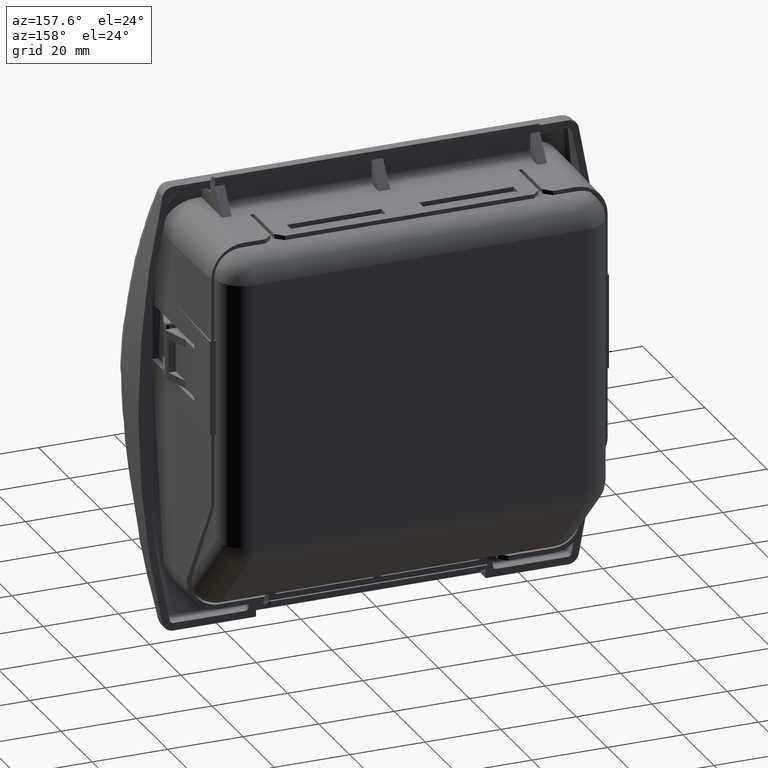
[diagram: clean part render]
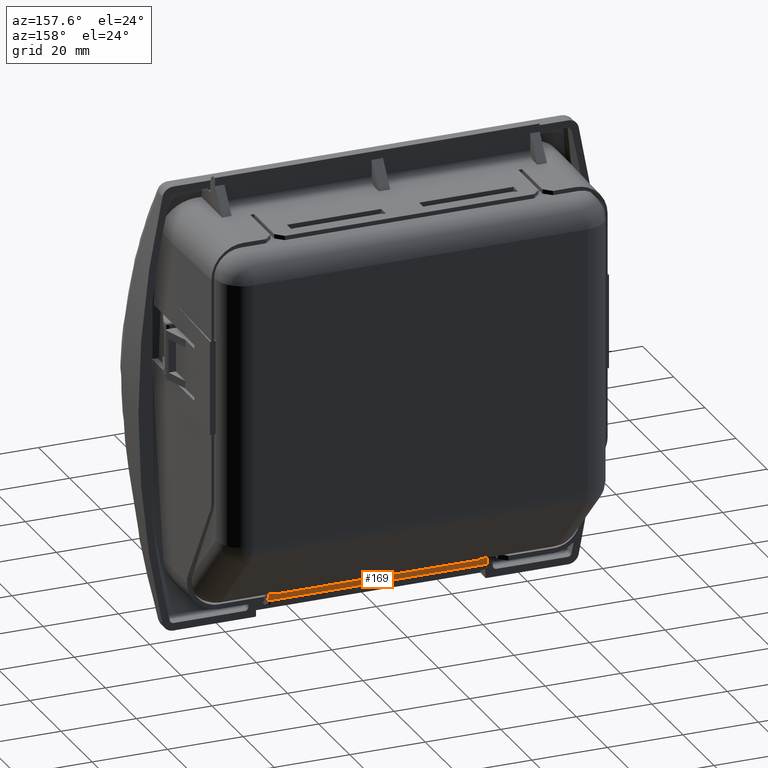
[diagram: same view with one face highlighted and labeled with its STEP entity id]
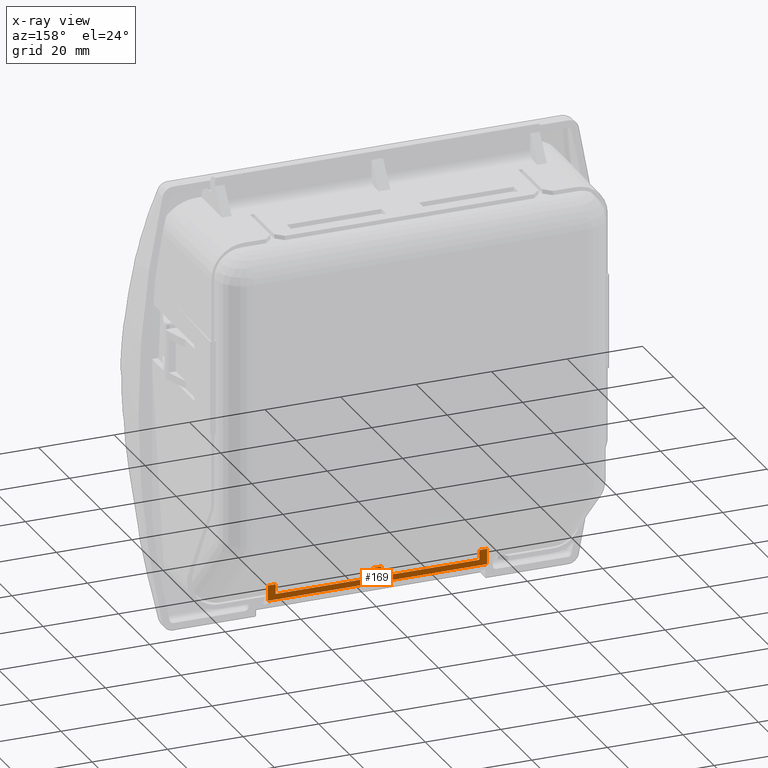
[diagram: x-ray of the same camera — body ghosted, the highlighted face saturated]
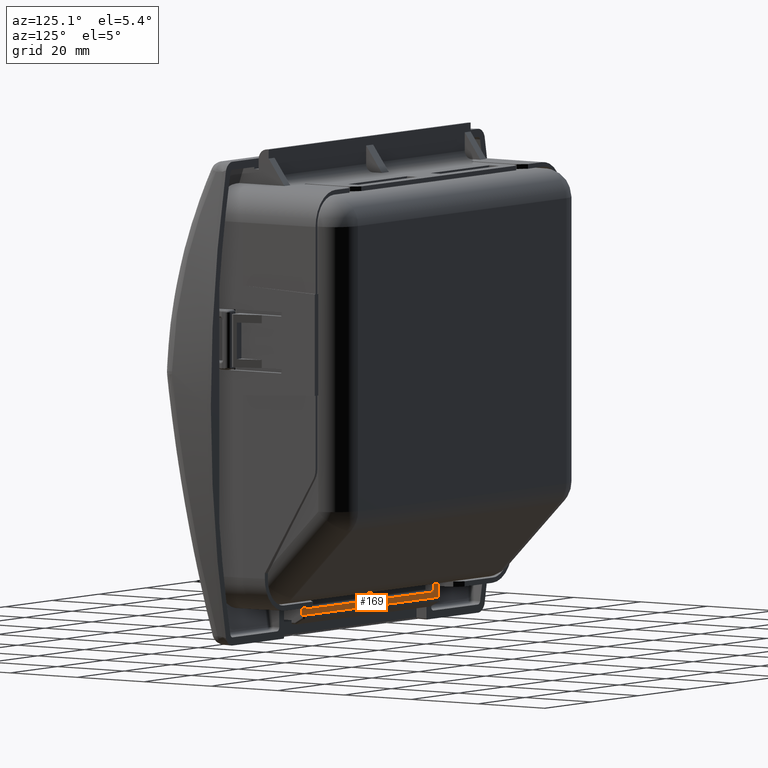
[diagram: same view with one face highlighted and labeled with its STEP entity id]
A machine part, auxiliary view. The second image highlights one B-rep face of the part: STEP entity #169.
The next image is the same camera in x-ray: the body ghosted, the highlighted face saturated — about 0% of this face is hidden behind the body in this view.
A second angle (auxiliary view) of the same face is appended — the face is thin or edge-on in the first view.
In plain terms, the highlighted planar face has unit normal (0, 1, 0).
Its self-contained STEP definition (entity closure, byte-faithful):
#169=ADVANCED_FACE('',(#1054),#1053,.T.);
#1053=PLANE('',#8007);
#1054=FACE_OUTER_BOUND('',#8008,.T.);
#8004=CARTESIAN_POINT('',(-3.48000000000E+001,9.39643359162E+000,-5.56101879000E+001));
#8005=DIRECTION('',(0.00000000000E+000,1.00000000000E+000,0.00000000000E+000));
#8006=DIRECTION('',(0.00000000000E+000,-0.00000000000E+000,1.00000000000E+000));
#8007=AXIS2_PLACEMENT_3D('',#8004,#8005,#8006);
#8008=EDGE_LOOP('',(#15143,#15144,#15145,#15146,#15147,#15148,#15149,#15150,#15151,#15152,#15153,#15154));
#15143=ORIENTED_EDGE('',*,*,#18650,.T.);
#15144=ORIENTED_EDGE('',*,*,#18647,.T.);
#15145=ORIENTED_EDGE('',*,*,#18644,.T.);
#15146=ORIENTED_EDGE('',*,*,#18695,.F.);
#15147=ORIENTED_EDGE('',*,*,#18696,.F.);
#15148=ORIENTED_EDGE('',*,*,#18697,.F.);
#15149=ORIENTED_EDGE('',*,*,#18698,.F.);
#15150=ORIENTED_EDGE('',*,*,#18699,.T.);
#15151=ORIENTED_EDGE('',*,*,#18700,.T.);
#15152=ORIENTED_EDGE('',*,*,#18689,.T.);
#15153=ORIENTED_EDGE('',*,*,#18701,.F.);
#15154=ORIENTED_EDGE('',*,*,#18702,.F.);
#18644=EDGE_CURVE('',#20551,#20580,#20587,.T.);
#18647=EDGE_CURVE('',#20593,#20551,#20607,.T.);
#18650=EDGE_CURVE('',#20627,#20593,#20628,.T.);
#18689=EDGE_CURVE('',#20892,#20885,#20893,.T.);
#18695=EDGE_CURVE('',#20931,#20580,#20932,.T.);
#18696=EDGE_CURVE('',#20938,#20931,#20939,.T.);
#18697=EDGE_CURVE('',#20945,#20938,#20946,.T.);
#18698=EDGE_CURVE('',#20952,#20945,#20953,.T.);
#18699=EDGE_CURVE('',#20952,#20959,#20960,.T.);
#18700=EDGE_CURVE('',#20959,#20892,#20966,.T.);
#18701=EDGE_CURVE('',#20972,#20885,#20973,.T.);
#18702=EDGE_CURVE('',#20627,#20972,#20979,.T.);
#20551=VERTEX_POINT('',#32295);
#20580=VERTEX_POINT('',#32314);
#20587=LINE('',#32318,#32319);
#20593=VERTEX_POINT('',#32321);
#20607=LINE('',#32329,#32330);
#20627=VERTEX_POINT('',#32341);
#20628=LINE('',#32342,#32343);
#20885=VERTEX_POINT('',#32488);
#20892=VERTEX_POINT('',#32492);
#20893=LINE('',#32493,#32494);
#20931=VERTEX_POINT('',#32517);
#20932=LINE('',#32518,#32519);
#20938=VERTEX_POINT('',#32521);
#20939=LINE('',#32522,#32523);
#20945=VERTEX_POINT('',#32525);
#20946=LINE('',#32526,#32527);
#20952=VERTEX_POINT('',#32529);
#20953=LINE('',#32530,#32531);
#20959=VERTEX_POINT('',#32533);
#20960=LINE('',#32534,#32535);
#20966=LINE('',#32537,#32538);
#20972=VERTEX_POINT('',#32540);
#20973=LINE('',#32541,#32542);
#20979=LINE('',#32544,#32545);
#32295=CARTESIAN_POINT('',(-1.00000000000E+000,9.39643359162E+000,-5.36981210000E+001));
#32314=CARTESIAN_POINT('',(-1.00000000000E+000,9.39643359162E+000,-5.10981210000E+001));
#32318=CARTESIAN_POINT('',(-1.00000000000E+000,9.39643359162E+000,-5.36981210000E+001));
#32319=VECTOR('',#32320,2.60000000000E+000);
#32320=DIRECTION('',(0.00000000000E+000,0.00000000000E+000,1.00000000000E+000));
#32321=CARTESIAN_POINT('',(-2.70000000000E+001,9.39643359162E+000,-5.36981210000E+001));
#32329=CARTESIAN_POINT('',(-2.70000000000E+001,9.39643359162E+000,-5.36981210000E+001));
#32330=VECTOR('',#32331,2.60000000000E+001);
#32331=DIRECTION('',(1.00000000000E+000,0.00000000000E+000,0.00000000000E+000));
#32341=CARTESIAN_POINT('',(-2.70000000000E+001,9.39643359162E+000,-5.10981210000E+001));
#32342=CARTESIAN_POINT('',(-2.70000000000E+001,9.39643359162E+000,-5.10981210000E+001));
#32343=VECTOR('',#32344,2.60000000000E+000);
#32344=DIRECTION('',(0.00000000000E+000,0.00000000000E+000,-1.00000000000E+000));
#32488=CARTESIAN_POINT('',(-2.90000000000E+001,9.39643359162E+000,-5.52000000000E+001));
#32492=CARTESIAN_POINT('',(2.90000000000E+001,9.39643359162E+000,-5.52000000000E+001));
#32493=CARTESIAN_POINT('',(2.90000000000E+001,9.39643359162E+000,-5.52000000000E+001));
#32494=VECTOR('',#32495,5.80000000000E+001);
#32495=DIRECTION('',(-1.00000000000E+000,0.00000000000E+000,0.00000000000E+000));
#32517=CARTESIAN_POINT('',(1.00000000000E+000,9.39643359162E+000,-5.10981210000E+001));
#32518=CARTESIAN_POINT('',(1.00000000000E+000,9.39643359162E+000,-5.10981210000E+001));
#32519=VECTOR('',#32520,2.00000000000E+000);
#32520=DIRECTION('',(-1.00000000000E+000,0.00000000000E+000,0.00000000000E+000));
#32521=CARTESIAN_POINT('',(1.00000000000E+000,9.39643359162E+000,-5.36981210000E+001));
#32522=CARTESIAN_POINT('',(1.00000000000E+000,9.39643359162E+000,-5.36981210000E+001));
#32523=VECTOR('',#32524,2.60000000000E+000);
#32524=DIRECTION('',(0.00000000000E+000,0.00000000000E+000,1.00000000000E+000));
#32525=CARTESIAN_POINT('',(2.70000000000E+001,9.39643359162E+000,-5.36981210000E+001));
#32526=CARTESIAN_POINT('',(2.70000000000E+001,9.39643359162E+000,-5.36981210000E+001));
#32527=VECTOR('',#32528,2.60000000000E+001);
#32528=DIRECTION('',(-1.00000000000E+000,0.00000000000E+000,0.00000000000E+000));
#32529=CARTESIAN_POINT('',(2.70000000000E+001,9.39643359162E+000,-5.10981210000E+001));
#32530=CARTESIAN_POINT('',(2.70000000000E+001,9.39643359162E+000,-5.10981210000E+001));
#32531=VECTOR('',#32532,2.60000000000E+000);
#32532=DIRECTION('',(0.00000000000E+000,0.00000000000E+000,-1.00000000000E+000));
#32533=CARTESIAN_POINT('',(2.90000000000E+001,9.39643359162E+000,-5.10981210000E+001));
#32534=CARTESIAN_POINT('',(2.70000000000E+001,9.39643359162E+000,-5.10981210000E+001));
#32535=VECTOR('',#32536,2.00000000000E+000);
#32536=DIRECTION('',(1.00000000000E+000,0.00000000000E+000,0.00000000000E+000));
#32537=CARTESIAN_POINT('',(2.90000000000E+001,9.39643359162E+000,-5.10981210000E+001));
#32538=VECTOR('',#32539,4.10187900000E+000);
#32539=DIRECTION('',(0.00000000000E+000,0.00000000000E+000,-1.00000000000E+000));
#32540=CARTESIAN_POINT('',(-2.90000000000E+001,9.39643359162E+000,-5.10981210000E+001));
#32541=CARTESIAN_POINT('',(-2.90000000000E+001,9.39643359162E+000,-5.10981210000E+001));
#32542=VECTOR('',#32543,4.10187900000E+000);
#32543=DIRECTION('',(0.00000000000E+000,0.00000000000E+000,-1.00000000000E+000));
#32544=CARTESIAN_POINT('',(-2.70000000000E+001,9.39643359162E+000,-5.10981210000E+001));
#32545=VECTOR('',#32546,2.00000000000E+000);
#32546=DIRECTION('',(-1.00000000000E+000,0.00000000000E+000,0.00000000000E+000));